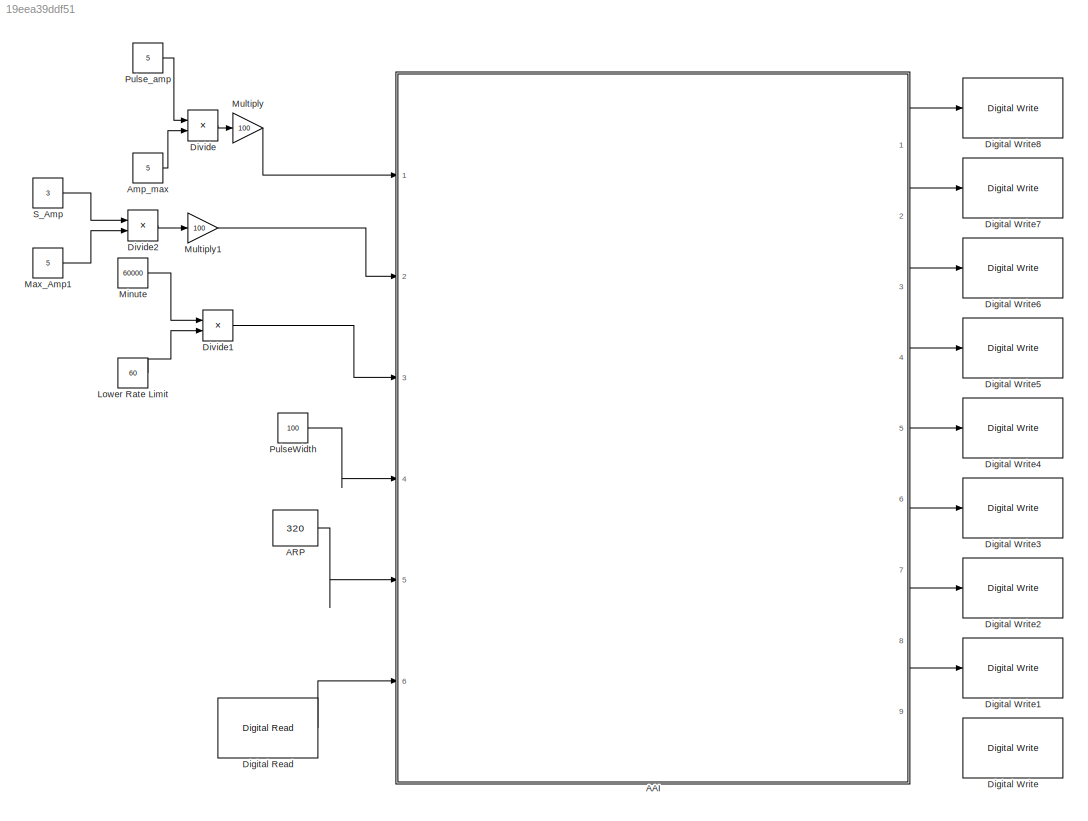
MODEL slx_19eea39ddf51
KIND model
CONFIG AbsTol = auto
CONFIG EnableMultiTasking = off
CONFIG FixedStep = auto
CONFIG MaxStep = auto
CONFIG MinStep = auto
CONFIG RelTol = 1e-3
CONFIG SampleTimeConstraint = Unconstrained
CONFIG Solver = VariableStepAuto
CONFIG SolverName = VariableStepAuto
CONFIG StartTime = 0.0
CONFIG StopTime = 10.0
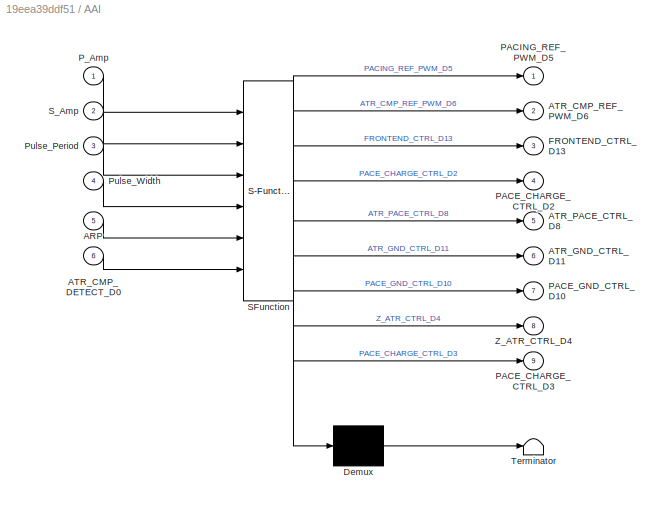
BLOCK [SubSystem] AAI
  ErrorFcn = Stateflow.Translate.translate
  PermitHierarchicalResolution = ExplicitOnly
  Ports = [6, 9]
  RequestExecContextInheritance = off
  SFBlockType = Chart
  TreatAsAtomicUnit = on
BLOCK [Demux] AAI/ Demux 
  Outputs = 1
  Ports = [1, 1]
BLOCK [S-Function] AAI/ SFunction 
  EnableBusSupport = off
  FunctionName = sf_sfun
  PortCounts = [6 10]
  Ports = [6, 10]
  SFcnIsStateOwnerBlock = off
  SFunctionDeploymentMode = off
  Tag = Stateflow S-Function 3
BLOCK [Terminator] AAI/ Terminator 
BLOCK [Inport] AAI/ARP
  Port = 5
BLOCK [Inport] AAI/ATR_CMP_DETECT_D0
  Port = 6
BLOCK [Outport] AAI/ATR_CMP_REF_PWM_D6
  Port = 2
BLOCK [Outport] AAI/ATR_GND_CTRL_D11
  Port = 6
BLOCK [Outport] AAI/ATR_PACE_CTRL_D8
  Port = 5
BLOCK [Outport] AAI/FRONTEND_CTRL_D13
  Port = 3
BLOCK [Outport] AAI/PACE_CHARGE_CTRL_D2
  Port = 4
BLOCK [Outport] AAI/PACE_CHARGE_CTRL_D3
  Port = 9
BLOCK [Outport] AAI/PACE_GND_CTRL_D10
  Port = 7
BLOCK [Outport] AAI/PACING_REF_PWM_D5
BLOCK [Inport] AAI/P_Amp
BLOCK [Inport] AAI/Pulse_Period
  Port = 3
BLOCK [Inport] AAI/Pulse_Width
  Port = 4
BLOCK [Inport] AAI/S_Amp
  Port = 2
BLOCK [Outport] AAI/Z_ATR_CTRL_D4
  Port = 8
BLOCK [Constant] ARP
  Value = 320
BLOCK [Constant] Amp_max
  Value = 5
BLOCK [Reference] Digital Read  REF=frdmk64flib/Digital Read
  Ports = [0, 1]
  SourceBlock = frdmk64flib/Digital Read
  SourceProductBaseCode = EC_FRDM_K64F
  SourceType = freedomk64f.DigitalRead
BLOCK [Reference] Digital Write  REF=frdmk64flib/Digital Write
  Ports = [1]
  SourceBlock = frdmk64flib/Digital Write
  SourceProductBaseCode = EC_FRDM_K64F
  SourceType = freedomk64f.DigitalWrite
BLOCK [Reference] Digital Write1  REF=frdmk64flib/Digital Write
  Ports = [1]
  SourceBlock = frdmk64flib/Digital Write
  SourceProductBaseCode = EC_FRDM_K64F
  SourceType = freedomk64f.DigitalWrite
BLOCK [Reference] Digital Write2  REF=frdmk64flib/Digital Write
  Ports = [1]
  SourceBlock = frdmk64flib/Digital Write
  SourceProductBaseCode = EC_FRDM_K64F
  SourceType = freedomk64f.DigitalWrite
BLOCK [Reference] Digital Write3  REF=frdmk64flib/Digital Write
  Ports = [1]
  SourceBlock = frdmk64flib/Digital Write
  SourceProductBaseCode = EC_FRDM_K64F
  SourceType = freedomk64f.DigitalWrite
BLOCK [Reference] Digital Write4  REF=frdmk64flib/Digital Write
  Ports = [1]
  SourceBlock = frdmk64flib/Digital Write
  SourceProductBaseCode = EC_FRDM_K64F
  SourceType = freedomk64f.DigitalWrite
BLOCK [Reference] Digital Write5  REF=frdmk64flib/Digital Write
  Ports = [1]
  SourceBlock = frdmk64flib/Digital Write
  SourceProductBaseCode = EC_FRDM_K64F
  SourceType = freedomk64f.DigitalWrite
BLOCK [Reference] Digital Write6  REF=frdmk64flib/Digital Write
  Ports = [1]
  SourceBlock = frdmk64flib/Digital Write
  SourceProductBaseCode = EC_FRDM_K64F
  SourceType = freedomk64f.DigitalWrite
BLOCK [Reference] Digital Write7  REF=frdmk64flib/Digital Write
  Ports = [1]
  SourceBlock = frdmk64flib/Digital Write
  SourceProductBaseCode = EC_FRDM_K64F
  SourceType = freedomk64f.DigitalWrite
BLOCK [Reference] Digital Write8  REF=frdmk64flib/Digital Write
  Ports = [1]
  SourceBlock = frdmk64flib/Digital Write
  SourceProductBaseCode = EC_FRDM_K64F
  SourceType = freedomk64f.DigitalWrite
BLOCK [Product] Divide
  Inputs = */
  Ports = [2, 1]
BLOCK [Product] Divide1
  Inputs = */
  Ports = [2, 1]
BLOCK [Product] Divide2
  Inputs = */
  Ports = [2, 1]
BLOCK [Constant] Lower Rate Limit
  Value = 60
BLOCK [Constant] Max_Amp1
  Value = 5
BLOCK [Constant] Minute
  Value = 60000
BLOCK [Gain] Multiply
  Gain = 100
BLOCK [Gain] Multiply1
  Gain = 100
BLOCK [Constant] PulseWidth
  Value = 100
BLOCK [Constant] Pulse_amp
  Value = 5
BLOCK [Constant] S_Amp
  Value = 3
LINE AAI:1 -> Digital Write8:1
LINE AAI:2 -> Digital Write7:1
LINE AAI:3 -> Digital Write6:1
LINE AAI:4 -> Digital Write5:1
LINE AAI:5 -> Digital Write4:1
LINE AAI:6 -> Digital Write3:1
LINE AAI:7 -> Digital Write2:1
LINE AAI:8 -> Digital Write1:1
LINE ARP:1 -> AAI:5
LINE Amp_max:1 -> Divide:2
LINE Digital Read:1 -> AAI:6
LINE Divide1:1 -> AAI:3
LINE Divide2:1 -> Multiply1:1
LINE Divide:1 -> Multiply:1
LINE Lower Rate Limit:1 -> Divide1:2
LINE Max_Amp1:1 -> Divide2:2
LINE Minute:1 -> Divide1:1
LINE Multiply1:1 -> AAI:2
LINE Multiply:1 -> AAI:1
LINE PulseWidth:1 -> AAI:4
LINE Pulse_amp:1 -> Divide:1
LINE S_Amp:1 -> Divide2:1
CHART AAI states=3 transitions=4
  STATE_LABEL 'AAI_Charging_Sensing \n\nentry:\nPACING_REF_PWM_D5= P_Amp;\nATR_CMP_REF_PWM_D6= S_Amp;\nFRONTEND_CTRL_D13= 1;\nPACE_CHARGE_CTRL_D2 = 1;\nATR_PACE_CTRL_D8 = 0;\nATR_GND_CTRL_D11= 1;\nPACE_GND_CTRL_D10= 0;\nZ_ATR_CTRL_D4= 0;\n'
  STATE_LABEL 'AAI_Pacing\n\nentry:\nPACING_REF_PWM_D5= P_Amp;\nPACE_CHARGE_CTRL_D2 = 0;\nATR_PACE_CTRL_D8 = 1;\nATR_GND_CTRL_D11= 0;\nZ_ATR_CTRL_D4 = 0;\n'
  STATE_LABEL 'AAI_Discharging\n\nentry:\nPACE_GND_CTRL_D10 = 1;\nATR_PACE_CTRL_D8= 0;\nATR_GND_CTRL_D11 = 1;\nZ_ATR_CTRL_D4= 0;\n'
CHART  states=0 transitions=0
